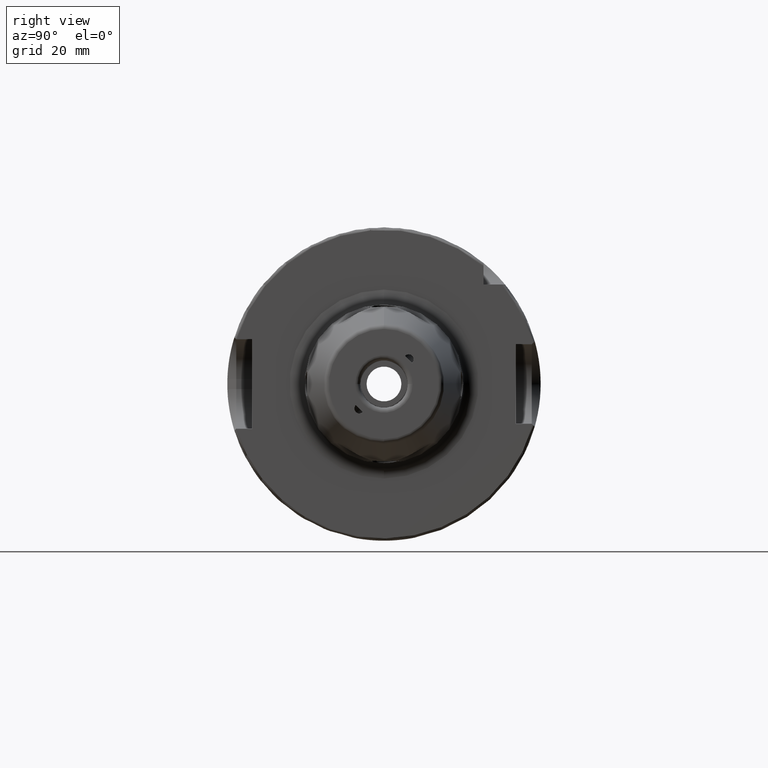
[diagram: clean part render]
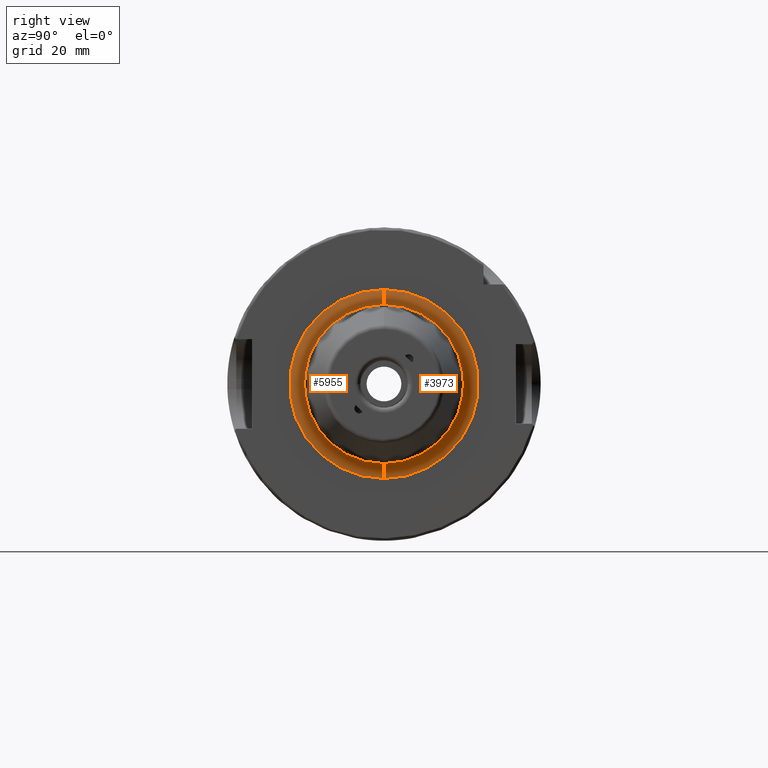
[diagram: same view with one multi-face feature highlighted, each face labeled with its STEP entity id]
A machine part, right view. The highlighted faces form ONE feature: a constant-radius fillet chain: 2 tangent blend faces with common blend radius 3 mm. The faces share edges in the B-rep.
Their STEP definitions:
[1] entity #5955 (Torus):
#782=CARTESIAN_POINT('',(2.9E1,-5.789202450757E-12,-1.9E1));
#783=DIRECTION('',(0.E0,1.E0,-3.046955049379E-13));
#784=DIRECTION('',(-1.E0,0.E0,4.879060118886E-13));
#785=AXIS2_PLACEMENT_3D('',#782,#783,#784);
#827=CARTESIAN_POINT('',(2.6E1,0.E0,0.E0));
#828=DIRECTION('',(1.E0,0.E0,0.E0));
#829=DIRECTION('',(0.E0,0.E0,1.E0));
#830=AXIS2_PLACEMENT_3D('',#827,#828,#829);
#2512=CARTESIAN_POINT('',(2.9E1,5.786870982405E-12,1.9E1));
#2513=DIRECTION('',(0.E0,-1.E0,3.045723395712E-13));
#2514=DIRECTION('',(-1.E0,0.E0,-4.879060118886E-13));
#2515=AXIS2_PLACEMENT_3D('',#2512,#2513,#2514);
#2517=CARTESIAN_POINT('',(2.9E1,0.E0,0.E0));
#2518=DIRECTION('',(1.E0,0.E0,0.E0));
#2519=DIRECTION('',(0.E0,0.E0,1.E0));
#2520=AXIS2_PLACEMENT_3D('',#2517,#2518,#2519);
#3118=CARTESIAN_POINT('',(2.6E1,0.E0,1.9E1));
#3119=CARTESIAN_POINT('',(2.6E1,0.E0,-1.9E1));
#3120=VERTEX_POINT('',#3118);
#3121=VERTEX_POINT('',#3119);
#3122=CARTESIAN_POINT('',(2.9E1,0.E0,1.6E1));
#3123=CARTESIAN_POINT('',(2.9E1,0.E0,-1.6E1));
#3124=VERTEX_POINT('',#3122);
#3125=VERTEX_POINT('',#3123);
#5943=CARTESIAN_POINT('',(2.9E1,0.E0,0.E0));
#5944=DIRECTION('',(1.E0,0.E0,0.E0));
#5945=DIRECTION('',(0.E0,1.432297369045E-2,9.998974209511E-1));
#5946=AXIS2_PLACEMENT_3D('',#5943,#5944,#5945);
#5947=TOROIDAL_SURFACE('',#5946,1.9E1,3.E0);
#5948=ORIENTED_EDGE('',*,*,#4007,.F.);
#5949=ORIENTED_EDGE('',*,*,#3969,.T.);
#5951=ORIENTED_EDGE('',*,*,#5950,.T.);
#5952=ORIENTED_EDGE('',*,*,#3966,.F.);
#5953=EDGE_LOOP('',(#5948,#5949,#5951,#5952));
#5954=FACE_OUTER_BOUND('',#5953,.F.);
#5955=ADVANCED_FACE('',(#5954),#5947,.F.);
#786=CIRCLE('',#785,3.E0);
#831=CIRCLE('',#830,1.9E1);
#2516=CIRCLE('',#2515,3.E0);
#2521=CIRCLE('',#2520,1.6E1);
#3966=EDGE_CURVE('',#3121,#3125,#786,.T.);
#3969=EDGE_CURVE('',#3120,#3124,#2516,.T.);
#4007=EDGE_CURVE('',#3120,#3121,#831,.T.);
#5950=EDGE_CURVE('',#3124,#3125,#2521,.T.);
[2] entity #3973 (Torus):
#772=CARTESIAN_POINT('',(2.9E1,0.E0,0.E0));
#773=DIRECTION('',(1.E0,0.E0,0.E0));
#774=DIRECTION('',(0.E0,0.E0,-1.E0));
#775=AXIS2_PLACEMENT_3D('',#772,#773,#774);
#782=CARTESIAN_POINT('',(2.9E1,-5.789202450757E-12,-1.9E1));
#783=DIRECTION('',(0.E0,1.E0,-3.046955049379E-13));
#784=DIRECTION('',(-1.E0,0.E0,4.879060118886E-13));
#785=AXIS2_PLACEMENT_3D('',#782,#783,#784);
#832=CARTESIAN_POINT('',(2.6E1,0.E0,0.E0));
#833=DIRECTION('',(1.E0,0.E0,0.E0));
#834=DIRECTION('',(0.E0,0.E0,-1.E0));
#835=AXIS2_PLACEMENT_3D('',#832,#833,#834);
#2512=CARTESIAN_POINT('',(2.9E1,5.786870982405E-12,1.9E1));
#2513=DIRECTION('',(0.E0,-1.E0,3.045723395712E-13));
#2514=DIRECTION('',(-1.E0,0.E0,-4.879060118886E-13));
#2515=AXIS2_PLACEMENT_3D('',#2512,#2513,#2514);
#3118=CARTESIAN_POINT('',(2.6E1,0.E0,1.9E1));
#3119=CARTESIAN_POINT('',(2.6E1,0.E0,-1.9E1));
#3120=VERTEX_POINT('',#3118);
#3121=VERTEX_POINT('',#3119);
#3122=CARTESIAN_POINT('',(2.9E1,0.E0,1.6E1));
#3123=CARTESIAN_POINT('',(2.9E1,0.E0,-1.6E1));
#3124=VERTEX_POINT('',#3122);
#3125=VERTEX_POINT('',#3123);
#3959=CARTESIAN_POINT('',(2.9E1,0.E0,0.E0));
#3960=DIRECTION('',(1.E0,0.E0,0.E0));
#3961=DIRECTION('',(0.E0,-1.432297369045E-2,-9.998974209511E-1));
#3962=AXIS2_PLACEMENT_3D('',#3959,#3960,#3961);
#3963=TOROIDAL_SURFACE('',#3962,1.9E1,3.E0);
#3965=ORIENTED_EDGE('',*,*,#3964,.F.);
#3967=ORIENTED_EDGE('',*,*,#3966,.T.);
#3968=ORIENTED_EDGE('',*,*,#3949,.T.);
#3970=ORIENTED_EDGE('',*,*,#3969,.F.);
#3971=EDGE_LOOP('',(#3965,#3967,#3968,#3970));
#3972=FACE_OUTER_BOUND('',#3971,.F.);
#3973=ADVANCED_FACE('',(#3972),#3963,.F.);
#776=CIRCLE('',#775,1.6E1);
#786=CIRCLE('',#785,3.E0);
#836=CIRCLE('',#835,1.9E1);
#2516=CIRCLE('',#2515,3.E0);
#3949=EDGE_CURVE('',#3125,#3124,#776,.T.);
#3964=EDGE_CURVE('',#3121,#3120,#836,.T.);
#3966=EDGE_CURVE('',#3121,#3125,#786,.T.);
#3969=EDGE_CURVE('',#3120,#3124,#2516,.T.);